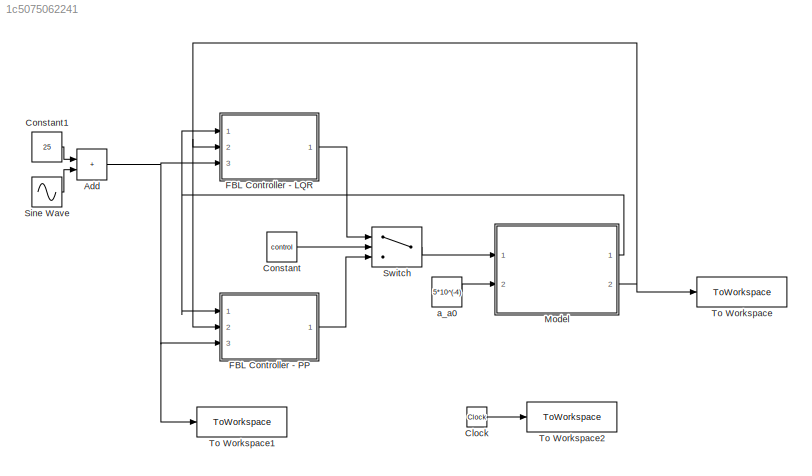
MODEL slx_1c5075062241
KIND model
CONFIG AbsTol = auto
CONFIG EnableMultiTasking = off
CONFIG FixedStep = auto
CONFIG MaxStep = auto
CONFIG MinStep = auto
CONFIG RelTol = 1e-3
CONFIG SampleTimeConstraint = Unconstrained
CONFIG SolverName = VariableStepAuto
CONFIG StartTime = 0.0
CONFIG StopTime = 10
BLOCK [Sum] Add
  IconShape = rectangular
  Ports = [2, 1]
BLOCK [Clock] Clock
BLOCK [Constant] Constant
  Value = control
BLOCK [Constant] Constant1
  Value = 25
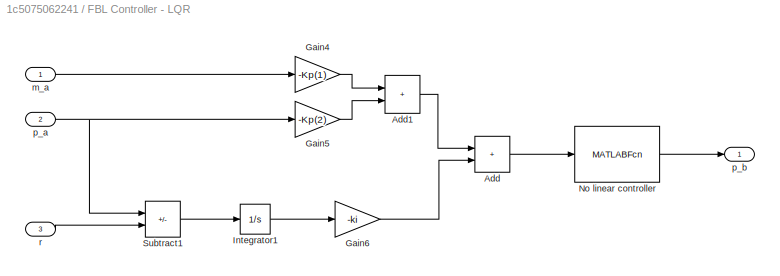
BLOCK [SubSystem] FBL Controller - LQR
  NameLocation = top
  Ports = [3, 1]
  RequestExecContextInheritance = off
BLOCK [Sum] FBL Controller - LQR/Add
  IconShape = rectangular
  Ports = [2, 1]
BLOCK [Sum] FBL Controller - LQR/Add1
  IconShape = rectangular
  Ports = [2, 1]
BLOCK [Gain] FBL Controller - LQR/Gain4
  Gain = -Kp(1)
  NameLocation = top
BLOCK [Gain] FBL Controller - LQR/Gain5
  Gain = -Kp(2)
  NameLocation = top
BLOCK [Gain] FBL Controller - LQR/Gain6
  Gain = -ki
  NameLocation = top
BLOCK [Integrator] FBL Controller - LQR/Integrator1
  InitialCondition = -30
  NameLocation = top
  Ports = [1, 1]
BLOCK [MATLABFcn] FBL Controller - LQR/No linear controller
  MATLABFcn = transcriptional_regulation_fbl_controller
  NameLocation = top
  OutputDimensions = 1
  Ports = [1, 1]
BLOCK [Sum] FBL Controller - LQR/Subtract1
  IconShape = rectangular
  Inputs = +-
  NameLocation = top
  Ports = [2, 1]
BLOCK [Inport] FBL Controller - LQR/m_a
BLOCK [Inport] FBL Controller - LQR/p_a
  Port = 2
BLOCK [Outport] FBL Controller - LQR/p_b
BLOCK [Inport] FBL Controller - LQR/r
  Port = 3
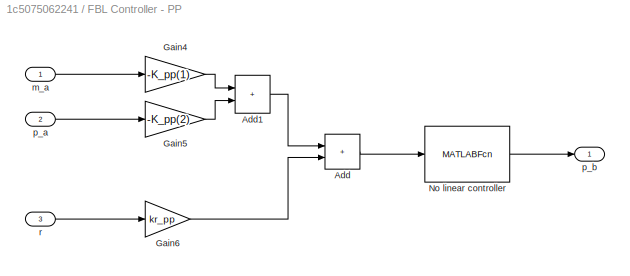
BLOCK [SubSystem] FBL Controller - PP
  NameLocation = top
  Ports = [3, 1]
  RequestExecContextInheritance = off
BLOCK [Sum] FBL Controller - PP/Add
  IconShape = rectangular
  Ports = [2, 1]
BLOCK [Sum] FBL Controller - PP/Add1
  IconShape = rectangular
  Ports = [2, 1]
BLOCK [Gain] FBL Controller - PP/Gain4
  Gain = -K_pp(1)
  NameLocation = top
BLOCK [Gain] FBL Controller - PP/Gain5
  Gain = -K_pp(2)
  NameLocation = top
BLOCK [Gain] FBL Controller - PP/Gain6
  Gain = kr_pp
  NameLocation = top
BLOCK [MATLABFcn] FBL Controller - PP/No linear controller
  MATLABFcn = transcriptional_regulation_fbl_controller
  NameLocation = top
  OutputDimensions = 1
  Ports = [1, 1]
BLOCK [Inport] FBL Controller - PP/m_a
BLOCK [Inport] FBL Controller - PP/p_a
  Port = 2
BLOCK [Outport] FBL Controller - PP/p_b
BLOCK [Inport] FBL Controller - PP/r
  Port = 3
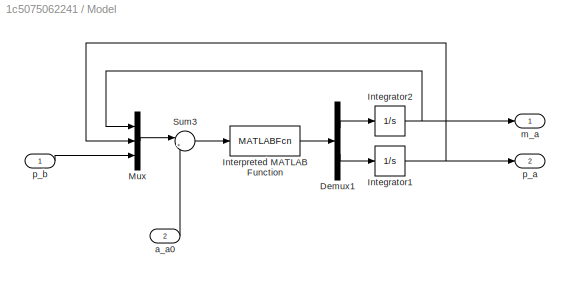
BLOCK [SubSystem] Model
  NameLocation = top
  Ports = [2, 2]
  RequestExecContextInheritance = off
BLOCK [Demux] Model/Demux1
  Outputs = 2
  Ports = [1, 2]
BLOCK [Integrator] Model/Integrator1
  InitialCondition = 30
  Ports = [1, 1]
BLOCK [Integrator] Model/Integrator2
  InitialCondition = 25
  Ports = [1, 1]
BLOCK [MATLABFcn] Model/Interpreted MATLAB Function
  MATLABFcn = transcriptional_regulation_model
  OutputDimensions = 2
  Ports = [1, 1]
BLOCK [Mux] Model/Mux
  DisplayOption = bar
  Inputs = 3
  Ports = [3, 1]
BLOCK [Sum] Model/Sum3
  Inputs = |++
  Ports = [2, 1]
BLOCK [Inport] Model/a_a0
  Port = 2
BLOCK [Outport] Model/m_a
BLOCK [Outport] Model/p_a
  Port = 2
BLOCK [Inport] Model/p_b
BLOCK [Sin] Sine Wave
  Frequency = 0.01
  Ports = [0, 1]
  SampleTime = 0
BLOCK [Switch] Switch
  Criteria = u2 > Threshold
  InputSameDT = off
  SaturateOnIntegerOverflow = off
  Threshold = 0.5
BLOCK [ToWorkspace] To Workspace
  FixptAsFi = on
  MaxDataPoints = inf
  Ports = [1]
  SampleTime = -1
  VariableName = p_a
BLOCK [ToWorkspace] To Workspace1
  FixptAsFi = on
  MaxDataPoints = inf
  Ports = [1]
  SampleTime = -1
  VariableName = r
BLOCK [ToWorkspace] To Workspace2
  FixptAsFi = on
  MaxDataPoints = inf
  Ports = [1]
  SampleTime = -1
  VariableName = t
BLOCK [Constant] a_a0
  Value = 5*10^(-4)
NET Add:1 -> FBL Controller - LQR:3, FBL Controller - PP:3, To Workspace1:1
LINE Clock:1 -> To Workspace2:1
LINE Constant1:1 -> Add:1
LINE Constant:1 -> Switch:2
LINE FBL Controller - LQR/Add1:1 -> FBL Controller - LQR/Add:1
LINE FBL Controller - LQR/Add:1 -> FBL Controller - LQR/No linear controller:1
LINE FBL Controller - LQR/Gain4:1 -> FBL Controller - LQR/Add1:1
LINE FBL Controller - LQR/Gain5:1 -> FBL Controller - LQR/Add1:2
LINE FBL Controller - LQR/Gain6:1 -> FBL Controller - LQR/Add:2
LINE FBL Controller - LQR/Integrator1:1 -> FBL Controller - LQR/Gain6:1
LINE FBL Controller - LQR/No linear controller:1 -> FBL Controller - LQR/p_b:1
LINE FBL Controller - LQR/Subtract1:1 -> FBL Controller - LQR/Integrator1:1
LINE FBL Controller - LQR/m_a:1 -> FBL Controller - LQR/Gain4:1
NET FBL Controller - LQR/p_a:1 -> FBL Controller - LQR/Gain5:1, FBL Controller - LQR/Subtract1:1
LINE FBL Controller - LQR/r:1 -> FBL Controller - LQR/Subtract1:2
LINE FBL Controller - LQR:1 -> Switch:1
LINE FBL Controller - PP/Add1:1 -> FBL Controller - PP/Add:1
LINE FBL Controller - PP/Add:1 -> FBL Controller - PP/No linear controller:1
LINE FBL Controller - PP/Gain4:1 -> FBL Controller - PP/Add1:1
LINE FBL Controller - PP/Gain5:1 -> FBL Controller - PP/Add1:2
LINE FBL Controller - PP/Gain6:1 -> FBL Controller - PP/Add:2
LINE FBL Controller - PP/No linear controller:1 -> FBL Controller - PP/p_b:1
LINE FBL Controller - PP/m_a:1 -> FBL Controller - PP/Gain4:1
LINE FBL Controller - PP/p_a:1 -> FBL Controller - PP/Gain5:1
LINE FBL Controller - PP/r:1 -> FBL Controller - PP/Gain6:1
LINE FBL Controller - PP:1 -> Switch:3
LINE Model/Demux1:1 -> Model/Integrator2:1
LINE Model/Demux1:2 -> Model/Integrator1:1
NET Model/Integrator1:1 -> Model/Mux:2, Model/p_a:1
NET Model/Integrator2:1 -> Model/Mux:1, Model/m_a:1
LINE Model/Interpreted MATLAB Function:1 -> Model/Demux1:1
LINE Model/Mux:1 -> Model/Sum3:1
LINE Model/Sum3:1 -> Model/Interpreted MATLAB Function:1
LINE Model/a_a0:1 -> Model/Sum3:2
LINE Model/p_b:1 -> Model/Mux:3
NET Model:1 -> FBL Controller - LQR:1, FBL Controller - PP:1
NET Model:2 -> FBL Controller - LQR:2, FBL Controller - PP:2, To Workspace:1
LINE Sine Wave:1 -> Add:2
LINE Switch:1 -> Model:1
LINE a_a0:1 -> Model:2
note: NET lines group one-source signal fan-out (src -> all destinations, sorted); 1:1 wires keep LINE
